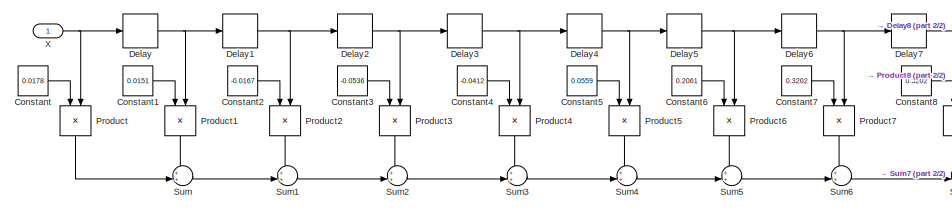
[diagram: root canvas - part 1/2, left side, full height]
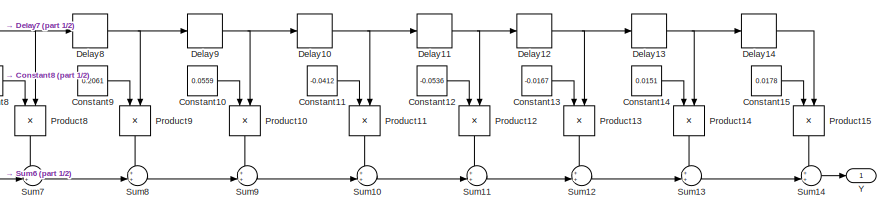
[diagram: root canvas - part 2/2, right side, full height]
MODEL fir16tap
KIND model
BLOCK [Constant] Constant
  OutDataTypeStr = Inherit: Inherit via back propagation
  SID = 544
  Value = 0.0178
BLOCK [Constant] Constant1
  OutDataTypeStr = Inherit: Inherit via back propagation
  SID = 545
  Value = 0.0151
BLOCK [Constant] Constant10
  OutDataTypeStr = Inherit: Inherit via back propagation
  SID = 546
  Value = 0.0559
BLOCK [Constant] Constant11
  OutDataTypeStr = Inherit: Inherit via back propagation
  SID = 547
  Value = -0.0412
BLOCK [Constant] Constant12
  OutDataTypeStr = Inherit: Inherit via back propagation
  SID = 548
  Value = -0.0536
BLOCK [Constant] Constant13
  OutDataTypeStr = Inherit: Inherit via back propagation
  SID = 549
  Value = -0.0167
BLOCK [Constant] Constant14
  OutDataTypeStr = Inherit: Inherit via back propagation
  SID = 550
  Value = 0.0151
BLOCK [Constant] Constant15
  OutDataTypeStr = Inherit: Inherit via back propagation
  SID = 551
  Value = 0.0178
BLOCK [Constant] Constant2
  OutDataTypeStr = Inherit: Inherit via back propagation
  SID = 552
  Value = -0.0167
BLOCK [Constant] Constant3
  OutDataTypeStr = Inherit: Inherit via back propagation
  SID = 553
  Value = -0.0536
BLOCK [Constant] Constant4
  OutDataTypeStr = Inherit: Inherit via back propagation
  SID = 554
  Value = -0.0412
BLOCK [Constant] Constant5
  OutDataTypeStr = Inherit: Inherit via back propagation
  SID = 555
  Value = 0.0559
BLOCK [Constant] Constant6
  OutDataTypeStr = Inherit: Inherit via back propagation
  SID = 556
  Value = 0.2061
BLOCK [Constant] Constant7
  OutDataTypeStr = Inherit: Inherit via back propagation
  SID = 557
  Value = 0.3202
BLOCK [Constant] Constant8
  OutDataTypeStr = Inherit: Inherit via back propagation
  SID = 558
  Value = 0.3202
BLOCK [Constant] Constant9
  OutDataTypeStr = Inherit: Inherit via back propagation
  SID = 559
  Value = 0.2061
BLOCK [Delay] Delay
  DelayLength = 1
  InputPortMap = u0
  Ports = [1, 1]
  SID = 560
  SampleTime = 1
BLOCK [Delay] Delay1
  DelayLength = 1
  InputPortMap = u0
  Ports = [1, 1]
  SID = 561
  SampleTime = 1
BLOCK [Delay] Delay10
  DelayLength = 1
  InputPortMap = u0
  Ports = [1, 1]
  SID = 562
  SampleTime = 1
BLOCK [Delay] Delay11
  DelayLength = 1
  InputPortMap = u0
  Ports = [1, 1]
  SID = 563
  SampleTime = 1
BLOCK [Delay] Delay12
  DelayLength = 1
  InputPortMap = u0
  Ports = [1, 1]
  SID = 564
  SampleTime = 1
BLOCK [Delay] Delay13
  DelayLength = 1
  InputPortMap = u0
  Ports = [1, 1]
  SID = 565
  SampleTime = 1
BLOCK [Delay] Delay14
  DelayLength = 1
  InputPortMap = u0
  Ports = [1, 1]
  SID = 566
  SampleTime = 1
BLOCK [Delay] Delay2
  DelayLength = 1
  InputPortMap = u0
  Ports = [1, 1]
  SID = 567
  SampleTime = 1
BLOCK [Delay] Delay3
  DelayLength = 1
  InputPortMap = u0
  Ports = [1, 1]
  SID = 568
  SampleTime = 1
BLOCK [Delay] Delay4
  DelayLength = 1
  InputPortMap = u0
  Ports = [1, 1]
  SID = 569
  SampleTime = 1
BLOCK [Delay] Delay5
  DelayLength = 1
  InputPortMap = u0
  Ports = [1, 1]
  SID = 570
  SampleTime = 1
BLOCK [Delay] Delay6
  DelayLength = 1
  InputPortMap = u0
  Ports = [1, 1]
  SID = 571
  SampleTime = 1
BLOCK [Delay] Delay7
  DelayLength = 1
  InputPortMap = u0
  Ports = [1, 1]
  SID = 572
  SampleTime = 1
BLOCK [Delay] Delay8
  DelayLength = 1
  InputPortMap = u0
  Ports = [1, 1]
  SID = 573
  SampleTime = 1
BLOCK [Delay] Delay9
  DelayLength = 1
  InputPortMap = u0
  Ports = [1, 1]
  SID = 574
  SampleTime = 1
BLOCK [Product] Product
  InputSameDT = off
  OutDataTypeStr = fixdt(1,32,16)
  Ports = [2, 1]
  SID = 575
  SaturateOnIntegerOverflow = off
BLOCK [Product] Product1
  InputSameDT = off
  OutDataTypeStr = fixdt(1,32,16)
  Ports = [2, 1]
  SID = 576
  SaturateOnIntegerOverflow = off
BLOCK [Product] Product10
  InputSameDT = off
  OutDataTypeStr = fixdt(1,32,16)
  Ports = [2, 1]
  SID = 577
  SaturateOnIntegerOverflow = off
BLOCK [Product] Product11
  InputSameDT = off
  OutDataTypeStr = fixdt(1,32,16)
  Ports = [2, 1]
  SID = 578
  SaturateOnIntegerOverflow = off
BLOCK [Product] Product12
  InputSameDT = off
  OutDataTypeStr = fixdt(1,32,16)
  Ports = [2, 1]
  SID = 579
  SaturateOnIntegerOverflow = off
BLOCK [Product] Product13
  InputSameDT = off
  OutDataTypeStr = fixdt(1,32,16)
  Ports = [2, 1]
  SID = 580
  SaturateOnIntegerOverflow = off
BLOCK [Product] Product14
  InputSameDT = off
  OutDataTypeStr = fixdt(1,32,16)
  Ports = [2, 1]
  SID = 581
  SaturateOnIntegerOverflow = off
BLOCK [Product] Product15
  InputSameDT = off
  OutDataTypeStr = fixdt(1,32,16)
  Ports = [2, 1]
  SID = 582
  SaturateOnIntegerOverflow = off
BLOCK [Product] Product2
  InputSameDT = off
  OutDataTypeStr = fixdt(1,32,16)
  Ports = [2, 1]
  SID = 583
  SaturateOnIntegerOverflow = off
BLOCK [Product] Product3
  InputSameDT = off
  OutDataTypeStr = fixdt(1,32,16)
  Ports = [2, 1]
  SID = 584
  SaturateOnIntegerOverflow = off
BLOCK [Product] Product4
  InputSameDT = off
  OutDataTypeStr = fixdt(1,32,16)
  Ports = [2, 1]
  SID = 585
  SaturateOnIntegerOverflow = off
BLOCK [Product] Product5
  InputSameDT = off
  OutDataTypeStr = fixdt(1,32,16)
  Ports = [2, 1]
  SID = 586
  SaturateOnIntegerOverflow = off
BLOCK [Product] Product6
  InputSameDT = off
  OutDataTypeStr = fixdt(1,32,16)
  Ports = [2, 1]
  SID = 587
  SaturateOnIntegerOverflow = off
BLOCK [Product] Product7
  InputSameDT = off
  OutDataTypeStr = fixdt(1,32,16)
  Ports = [2, 1]
  SID = 588
  SaturateOnIntegerOverflow = off
BLOCK [Product] Product8
  InputSameDT = off
  OutDataTypeStr = fixdt(1,32,16)
  Ports = [2, 1]
  SID = 589
  SaturateOnIntegerOverflow = off
BLOCK [Product] Product9
  InputSameDT = off
  OutDataTypeStr = fixdt(1,32,16)
  Ports = [2, 1]
  SID = 590
  SaturateOnIntegerOverflow = off
BLOCK [Sum] Sum
  AccumDataTypeStr = fixdt(1,32,16)
  IconShape = round
  InputSameDT = off
  Inputs = ++|
  OutDataTypeStr = fixdt(1,32,16)
  Ports = [2, 1]
  SID = 591
  SaturateOnIntegerOverflow = off
BLOCK [Sum] Sum1
  AccumDataTypeStr = fixdt(1,32,16)
  IconShape = round
  InputSameDT = off
  Inputs = ++|
  OutDataTypeStr = fixdt(1,32,16)
  Ports = [2, 1]
  SID = 592
  SaturateOnIntegerOverflow = off
BLOCK [Sum] Sum10
  AccumDataTypeStr = fixdt(1,32,16)
  IconShape = round
  InputSameDT = off
  Inputs = ++|
  OutDataTypeStr = fixdt(1,32,16)
  Ports = [2, 1]
  SID = 593
  SaturateOnIntegerOverflow = off
BLOCK [Sum] Sum11
  AccumDataTypeStr = fixdt(1,32,16)
  IconShape = round
  InputSameDT = off
  Inputs = ++|
  OutDataTypeStr = fixdt(1,32,16)
  Ports = [2, 1]
  SID = 594
  SaturateOnIntegerOverflow = off
BLOCK [Sum] Sum12
  AccumDataTypeStr = fixdt(1,32,16)
  IconShape = round
  InputSameDT = off
  Inputs = ++|
  OutDataTypeStr = fixdt(1,32,16)
  Ports = [2, 1]
  SID = 595
  SaturateOnIntegerOverflow = off
BLOCK [Sum] Sum13
  AccumDataTypeStr = fixdt(1,32,16)
  IconShape = round
  InputSameDT = off
  Inputs = ++|
  OutDataTypeStr = fixdt(1,32,16)
  Ports = [2, 1]
  SID = 596
  SaturateOnIntegerOverflow = off
BLOCK [Sum] Sum14
  AccumDataTypeStr = fixdt(1,32,16)
  IconShape = round
  InputSameDT = off
  Inputs = ++|
  OutDataTypeStr = fixdt(1,32,16)
  Ports = [2, 1]
  SID = 597
  SaturateOnIntegerOverflow = off
BLOCK [Sum] Sum2
  AccumDataTypeStr = fixdt(1,32,16)
  IconShape = round
  InputSameDT = off
  Inputs = ++|
  OutDataTypeStr = fixdt(1,32,16)
  Ports = [2, 1]
  SID = 598
  SaturateOnIntegerOverflow = off
BLOCK [Sum] Sum3
  AccumDataTypeStr = fixdt(1,32,16)
  IconShape = round
  InputSameDT = off
  Inputs = ++|
  OutDataTypeStr = fixdt(1,32,16)
  Ports = [2, 1]
  SID = 599
  SaturateOnIntegerOverflow = off
BLOCK [Sum] Sum4
  AccumDataTypeStr = fixdt(1,32,16)
  IconShape = round
  InputSameDT = off
  Inputs = ++|
  OutDataTypeStr = fixdt(1,32,16)
  Ports = [2, 1]
  SID = 600
  SaturateOnIntegerOverflow = off
BLOCK [Sum] Sum5
  AccumDataTypeStr = fixdt(1,32,16)
  IconShape = round
  InputSameDT = off
  Inputs = ++|
  OutDataTypeStr = fixdt(1,32,16)
  Ports = [2, 1]
  SID = 601
  SaturateOnIntegerOverflow = off
BLOCK [Sum] Sum6
  AccumDataTypeStr = fixdt(1,32,16)
  IconShape = round
  InputSameDT = off
  Inputs = ++|
  OutDataTypeStr = fixdt(1,32,16)
  Ports = [2, 1]
  SID = 602
  SaturateOnIntegerOverflow = off
BLOCK [Sum] Sum7
  AccumDataTypeStr = fixdt(1,32,16)
  IconShape = round
  InputSameDT = off
  Inputs = ++|
  OutDataTypeStr = fixdt(1,32,16)
  Ports = [2, 1]
  SID = 603
  SaturateOnIntegerOverflow = off
BLOCK [Sum] Sum8
  AccumDataTypeStr = fixdt(1,32,16)
  IconShape = round
  InputSameDT = off
  Inputs = ++|
  OutDataTypeStr = fixdt(1,32,16)
  Ports = [2, 1]
  SID = 604
  SaturateOnIntegerOverflow = off
BLOCK [Sum] Sum9
  AccumDataTypeStr = fixdt(1,32,16)
  IconShape = round
  InputSameDT = off
  Inputs = ++|
  OutDataTypeStr = fixdt(1,32,16)
  Ports = [2, 1]
  SID = 605
  SaturateOnIntegerOverflow = off
BLOCK [Inport] X
  IconDisplay = Port number
  SID = 543
BLOCK [Outport] Y
  IconDisplay = Port number
  SID = 606
LINE Constant10:1 -> Product10:1
LINE Constant11:1 -> Product11:1
LINE Constant12:1 -> Product12:1
LINE Constant13:1 -> Product13:1
LINE Constant14:1 -> Product14:1
LINE Constant15:1 -> Product15:1
LINE Constant1:1 -> Product1:1
LINE Constant2:1 -> Product2:1
LINE Constant3:1 -> Product3:1
LINE Constant4:1 -> Product4:1
LINE Constant5:1 -> Product5:1
LINE Constant6:1 -> Product6:1
LINE Constant7:1 -> Product7:1
LINE Constant8:1 -> Product8:1
LINE Constant9:1 -> Product9:1
LINE Constant:1 -> Product:1
NET Delay10:1 -> Delay11:1, Product11:2
NET Delay11:1 -> Delay12:1, Product12:2
NET Delay12:1 -> Delay13:1, Product13:2
NET Delay13:1 -> Delay14:1, Product14:2
LINE Delay14:1 -> Product15:2
NET Delay1:1 -> Delay2:1, Product2:2
NET Delay2:1 -> Delay3:1, Product3:2
NET Delay3:1 -> Delay4:1, Product4:2
NET Delay4:1 -> Delay5:1, Product5:2
NET Delay5:1 -> Delay6:1, Product6:2
NET Delay6:1 -> Delay7:1, Product7:2
NET Delay7:1 -> Delay8:1, Product8:2
NET Delay8:1 -> Delay9:1, Product9:2
NET Delay9:1 -> Delay10:1, Product10:2
NET Delay:1 -> Delay1:1, Product1:2
LINE Product10:1 -> Sum9:1
LINE Product11:1 -> Sum10:1
LINE Product12:1 -> Sum11:1
LINE Product13:1 -> Sum12:1
LINE Product14:1 -> Sum13:1
LINE Product15:1 -> Sum14:1
LINE Product1:1 -> Sum:1
LINE Product2:1 -> Sum1:1
LINE Product3:1 -> Sum2:1
LINE Product4:1 -> Sum3:1
LINE Product5:1 -> Sum4:1
LINE Product6:1 -> Sum5:1
LINE Product7:1 -> Sum6:1
LINE Product8:1 -> Sum7:1
LINE Product9:1 -> Sum8:1
LINE Product:1 -> Sum:2
LINE Sum10:1 -> Sum11:2
LINE Sum11:1 -> Sum12:2
LINE Sum12:1 -> Sum13:2
LINE Sum13:1 -> Sum14:2
LINE Sum14:1 -> Y:1
LINE Sum1:1 -> Sum2:2
LINE Sum2:1 -> Sum3:2
LINE Sum3:1 -> Sum4:2
LINE Sum4:1 -> Sum5:2
LINE Sum5:1 -> Sum6:2
LINE Sum6:1 -> Sum7:2
LINE Sum7:1 -> Sum8:2
LINE Sum8:1 -> Sum9:2
LINE Sum9:1 -> Sum10:2
LINE Sum:1 -> Sum1:2
NET X:1 -> Delay:1, Product:2
note: NET lines group one-source signal fan-out (src -> all destinations, sorted); 1:1 wires keep LINE
